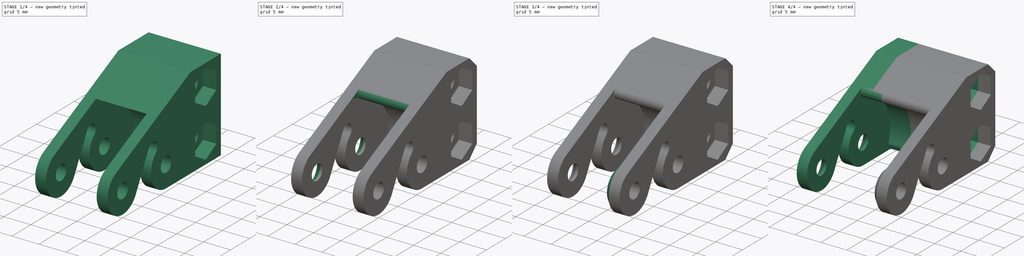
[diagram: build sequence overview — one tinted view per stage of 4, left to right]
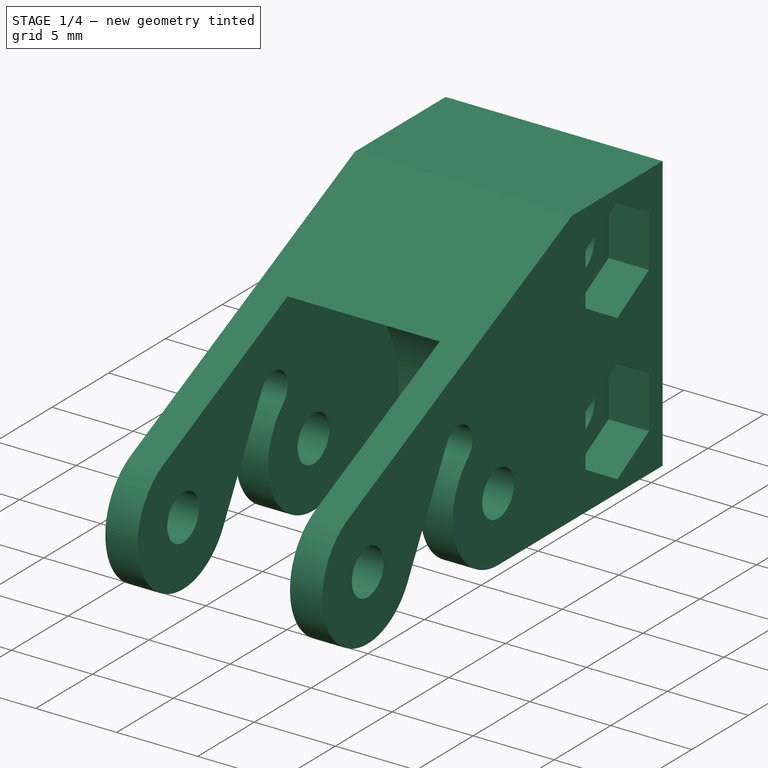
[diagram: stage 1 of 4 — iso view after this stage's code; geometry added in this stage tinted green]
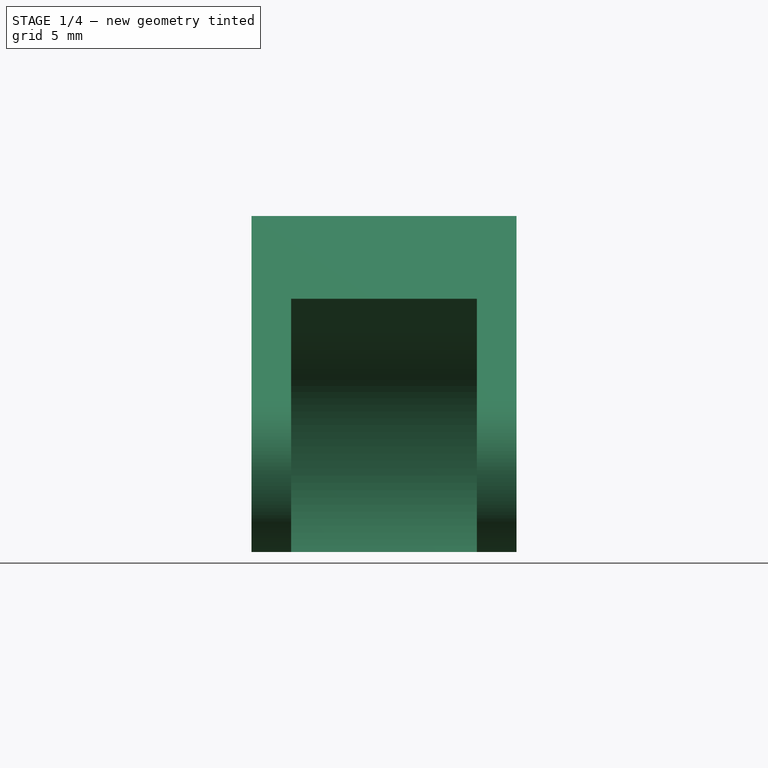
[diagram: stage 1 of 4 — front view after this stage's code; geometry added in this stage tinted green]
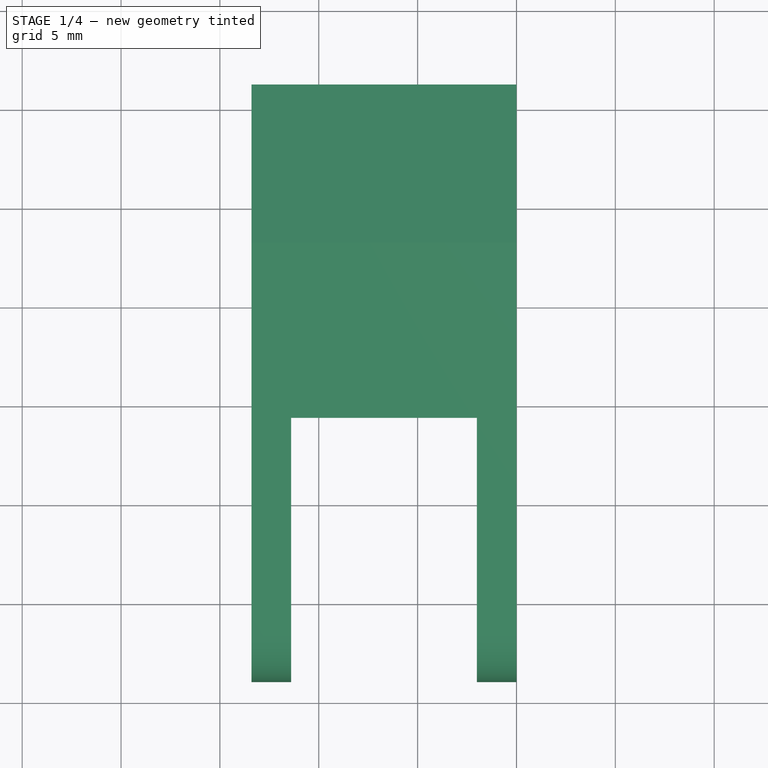
[diagram: stage 1 of 4 — top view after this stage's code; geometry added in this stage tinted green]
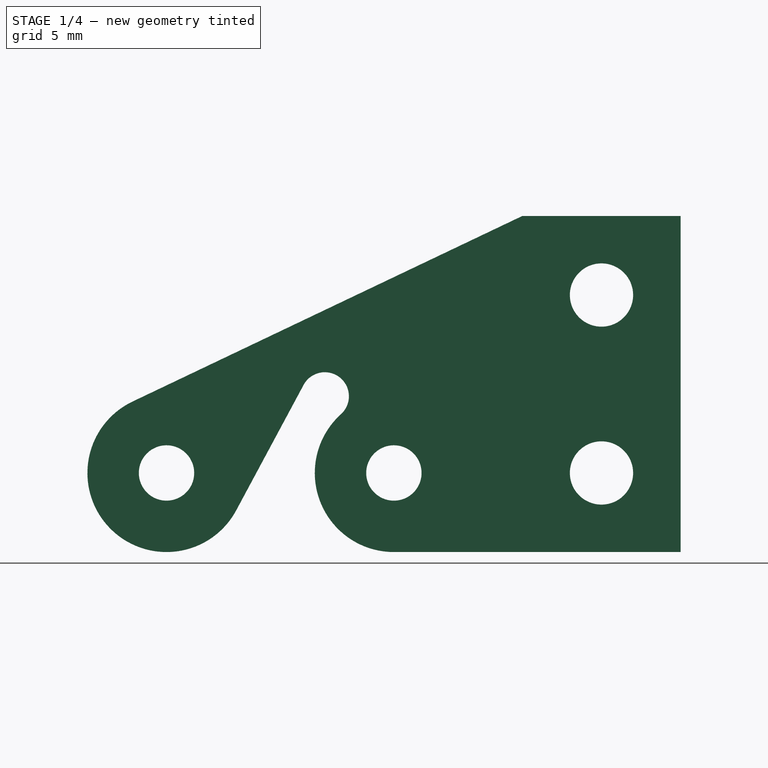
[diagram: stage 1 of 4 — right view after this stage's code; geometry added in this stage tinted green]
FCSTD DOCUMENT  (FreeCAD 0.20R29603 (Git))
Label: film-gear-frame
License: All rights reserved
LicenseURL: http://en.wikipedia.org/wiki/All_rights_reserved
objects: Sketcher::SketchObject×5, PartDesign::Pad×4, PartDesign::Pocket×4, PartDesign::Chamfer×4, PartDesign::Plane×2, PartDesign::Fillet×1, PartDesign::Body×1
note: 34 computed .brp shape members not serialized (recipe doc carries the construction recipe); baked Part::Feature solids carry a one-line shape summary decoded from their .brp

FEATURE [Sketcher::SketchObject] Sketch
  FullyConstrained = false
  MapMode = 5
  Placement = pos=(0,0,0) rot=(0.57735,0.57735,0.57735;2.0944rad)
  Support = -> [YZ_Plane]
  sketch-geometry (13):
    g0: ArcOfCircle CenterX=0 CenterY=0 CenterZ=0 NormalX=0 NormalY=0 NormalZ=1 AngleXU=0 Radius=4 StartAngle=2.01514 EndAngle=5.79013
    g1: LineSegment StartX=-1.71947 StartY=3.61157 StartZ=0 EndX=18 EndY=13 EndZ=0
    g2: LineSegment StartX=18 StartY=13 StartZ=0 EndX=26 EndY=13 EndZ=0
    g3: LineSegment StartX=26 StartY=13 StartZ=0 EndX=26 EndY=-4 EndZ=0
    g4: Circle CenterX=0 CenterY=0 CenterZ=0 NormalX=0 NormalY=0 NormalZ=1 AngleXU=0 Radius=1.4
    g5: Circle CenterX=11.5 CenterY=0 CenterZ=0 NormalX=0 NormalY=0 NormalZ=1 AngleXU=0 Radius=1.4
    g6: LineSegment StartX=3.52356 StartY=-1.89328 StartZ=0 EndX=6.93387 EndY=4.45363 EndZ=0
    g7: ArcOfCircle CenterX=8.0071 CenterY=3.87696 CenterZ=0 NormalX=0 NormalY=0 NormalZ=1 AngleXU=0 Radius=1.21835 StartAngle=5.44572 EndAngle=8.93172
    g8: ArcOfCircle CenterX=11.5 CenterY=0 CenterZ=0 NormalX=0 NormalY=0 NormalZ=1 AngleXU=0 Radius=4 StartAngle=2.30413 EndAngle=4.71239
    g9: LineSegment StartX=11.5 StartY=-4 StartZ=0 EndX=26 EndY=-4 EndZ=0
    g10: Circle CenterX=22 CenterY=0 CenterZ=0 NormalX=0 NormalY=0 NormalZ=1 AngleXU=0 Radius=1.6
    g11: Circle CenterX=22 CenterY=9 CenterZ=0 NormalX=0 NormalY=0 NormalZ=1 AngleXU=0 Radius=1.6
    g12: LineSegment StartX=22 StartY=0 StartZ=0 EndX=22 EndY=9 EndZ=0
  constraints (34):
    c: Coincident(g0,g-1)
    c: Tangent(g0,g1) = 1.5708
    c: Coincident(g1,g2)
    c: Coincident(g2,g3)
    c: Vertical(g3)
    c: Coincident(g4,g0)
    c: PointOnObject(g5,g-1)
    c: Diameter(g5) = 2.8
    c: Diameter(g4) = 2.8
    c: DistanceX(g0,g5) = 11.5
    c: Diameter(g0) = 8
    c: Tangent(g0,g6) = -1.5708
    c: Coincident(g7,g6)
    c: Coincident(g8,g5)
    c: Coincident(g8,g7)
    c: Coincident(g9,g8)
    c: Coincident(g9,g3)
    c: Tangent(g8,g9)
    c: Tangent(g6,g7)
    c: Tangent(g7,g8)
    c: Horizontal(g9)
    c: Diameter(g8) = 8
    c: PointOnObject(g10,g-1)
    c: Diameter(g11) = 3.2
    c: Diameter(g10) = 3.2
    c: Coincident(g12,g10)
    c: Coincident(g12,g11)
    c: Vertical(g12)
    c: DistanceY(g12,g12) = 9
    c: DistanceX(g0,g10) = 22
    c: DistanceX(g0,g3) = 26
    c: DistanceY(g3,g3) = 17
    c: Horizontal(g2)
    c: DistanceX(g2,g2) = 8
FEATURE [PartDesign::Pad] Pad
  Direction = (1,1,1)
  Length = 13.4
  Length2 = 100
  Placement = pos=(0,0,0) rot=(0.57735,0.57735,0.57735;2.0944rad)
  Profile = -> Sketch
  Reversed = true
  Type = 0
FEATURE [PartDesign::Plane] DatumPlane
  AttachmentOffset = pos=(0,0,-6.7) rot=(0,0,1;0rad)
  Length = 61.0995
  MapMode = 5
  Placement = pos=(-6.7,1.5e-15,-1.5e-15) rot=(0.57735,0.57735,0.57735;2.0944rad)
  ResizeMode = 0
  Support = -> [YZ_Plane]
  Width = 60.0995
FEATURE [Sketcher::SketchObject] Sketch001
  FullyConstrained = false
  MapMode = 5
  Placement = pos=(-6.7,1.5e-15,-1.5e-15) rot=(0.57735,0.57735,0.57735;2.0944rad)
  Support = -> [DatumPlane]
  sketch-geometry (4):
    g0: ArcOfCircle CenterX=11.5 CenterY=0 CenterZ=0 NormalX=0 NormalY=0 NormalZ=1 AngleXU=0 Radius=7.5 StartAngle=5.02937 EndAngle=7.50491
    g1: LineSegment StartX=13.8377 StartY=-7.12636 StartZ=0 EndX=-9.26512 EndY=-7.12636 EndZ=0
    g2: LineSegment StartX=-9.26512 StartY=-7.12636 StartZ=0 EndX=-9.26512 EndY=15.5392 EndZ=0
    g3: LineSegment StartX=-9.26512 StartY=15.5392 StartZ=0 EndX=14.0652 EndY=7.04768 EndZ=0
  constraints (11):
    c: PointOnObject(g0,g-1)
    c: Coincident(g0,g1)
    c: Coincident(g1,g2)
    c: Coincident(g2,g3)
    c: Coincident(g3,g0)
    c: Vertical(g2)
    c: Horizontal(g1)
    c: DistanceX(g-1,g0) = 11.5
    c: Diameter(g0) = 15
    c: Angle(g2,g3) = 1.22173
    c: Tangent(g3,g0)
FEATURE [PartDesign::Pocket] Pocket
  BaseFeature = -> Pad
  Direction = (1,1,1)
  Length = 9.4
  Length2 = 100
  Midplane = true
  Placement = pos=(0,0,0) rot=(0.57735,0.57735,0.57735;2.0944rad)
  Profile = -> Sketch001
  Type = 0
FEATURE [Sketcher::SketchObject] Sketch002
  FullyConstrained = true
  MapMode = 5
  Placement = pos=(0,0,0) rot=(0.57735,0.57735,0.57735;2.0944rad)
  Support = -> [YZ_Plane]
  sketch-geometry (14):
    g0: LineSegment StartX=22 StartY=12.2332 StartZ=0 EndX=19.2 EndY=10.6166 EndZ=0
    g1: LineSegment StartX=19.2 StartY=10.6166 StartZ=0 EndX=19.2 EndY=7.38342 EndZ=0
    g2: LineSegment StartX=19.2 StartY=7.38342 StartZ=0 EndX=22 EndY=5.76684 EndZ=0
    g3: LineSegment StartX=22 StartY=5.76684 StartZ=0 EndX=24.8 EndY=7.38342 EndZ=0
    g4: Circle CenterX=22 CenterY=9 CenterZ=0 NormalX=0 NormalY=0 NormalZ=1 AngleXU=0 Radius=3.23316
    g5: LineSegment StartX=22 StartY=3.23316 StartZ=0 EndX=19.2 EndY=1.61658 EndZ=0
    g6: LineSegment StartX=19.2 StartY=1.61658 StartZ=0 EndX=19.2 EndY=-1.61658 EndZ=0
    g7: LineSegment StartX=19.2 StartY=-1.61658 StartZ=0 EndX=22 EndY=-3.23316 EndZ=0
    g8: LineSegment StartX=22 StartY=-3.23316 StartZ=0 EndX=24.8 EndY=-1.61658 EndZ=0
    g9: Circle CenterX=22 CenterY=0 CenterZ=0 NormalX=0 NormalY=0 NormalZ=1 AngleXU=0 Radius=3.23316
    g10: LineSegment StartX=24.8 StartY=7.38342 StartZ=0 EndX=24.8 EndY=10.6166 EndZ=0
    g11: LineSegment StartX=24.8 StartY=10.6166 StartZ=0 EndX=22 EndY=12.2332 EndZ=0
    g12: LineSegment StartX=24.8 StartY=-1.61658 StartZ=0 EndX=24.8 EndY=1.61658 EndZ=0
    g13: LineSegment StartX=24.8 StartY=1.61658 StartZ=0 EndX=22 EndY=3.23316 EndZ=0
  constraints (42):
    c: Coincident(g0,g1)
    c: Coincident(g1,g2)
    c: Coincident(g2,g3)
    c: PointOnObject(g0,g4)
    c: PointOnObject(g0,g4)
    c: PointOnObject(g1,g4)
    c: PointOnObject(g2,g4)
    c: PointOnObject(g3,g4)
    c: DistanceX(g-1,g4) = 22
    c: DistanceY(g-1,g4) = 9
    c: Equal(g1,g2)
    c: Equal(g3,g2)
    c: Equal(g0,g1)
    c: Coincident(g5,g6)
    c: Coincident(g6,g7)
    c: Coincident(g7,g8)
    c: PointOnObject(g5,g9)
    c: PointOnObject(g5,g9)
    c: PointOnObject(g6,g9)
    c: PointOnObject(g7,g9)
    c: PointOnObject(g8,g9)
    c: PointOnObject(g9,g-1)
    c: Equal(g6,g5)
    c: Equal(g7,g6)
    c: Equal(g8,g7)
    c: DistanceX(g-1,g9) = 22
    c: Coincident(g3,g10)
    c: PointOnObject(g10,g4)
    c: Coincident(g10,g11)
    c: Coincident(g11,g0)
    c: Equal(g0,g11)
    c: Coincident(g8,g12)
    c: PointOnObject(g12,g9)
    c: Coincident(g12,g13)
    c: Coincident(g13,g5)
    c: Equal(g5,g13)
    c: Vertical(g1)
    c: Equal(g10,g11)
    c: DistanceX(g0,g10) = 5.6
    c: Vertical(g6)
    c: Equal(g13,g12)
    c: DistanceX(g6,g8) = 5.6
FEATURE [PartDesign::Pocket] Pocket001
  BaseFeature = -> Pocket
  Direction = (1,1,1)
  Length = 5
  Length2 = 100
  Midplane = true
  Placement = pos=(0,0,0) rot=(0.57735,0.57735,0.57735;2.0944rad)
  Profile = -> Sketch002
  Type = 0
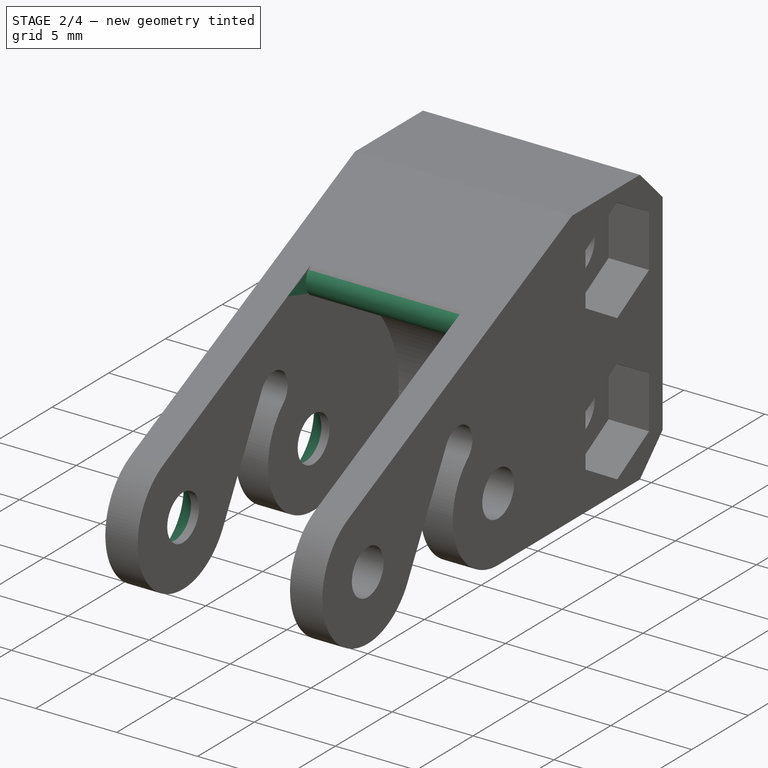
[diagram: stage 2 of 4 — iso view after this stage's code; geometry added in this stage tinted green]
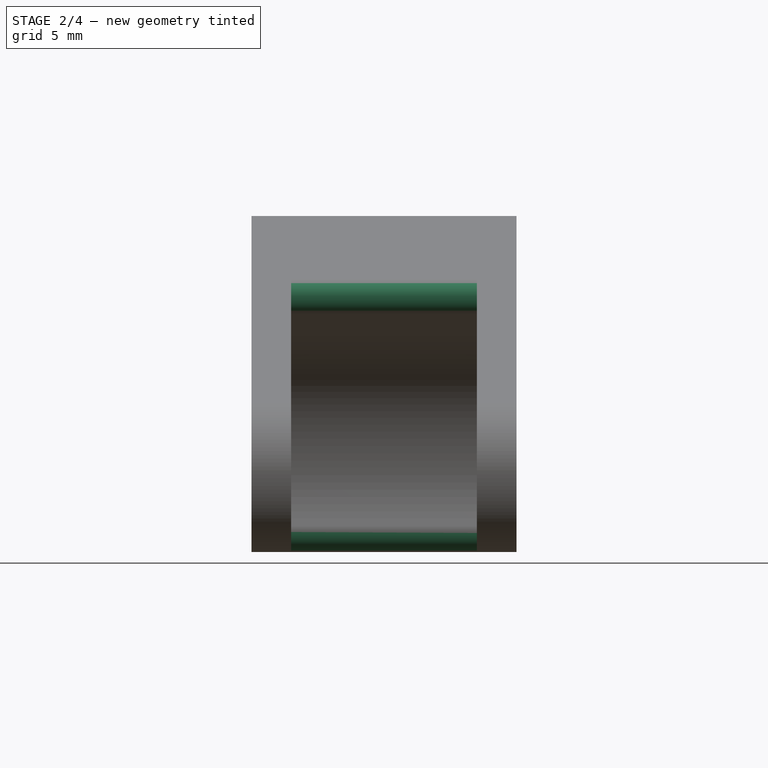
[diagram: stage 2 of 4 — front view after this stage's code; geometry added in this stage tinted green]
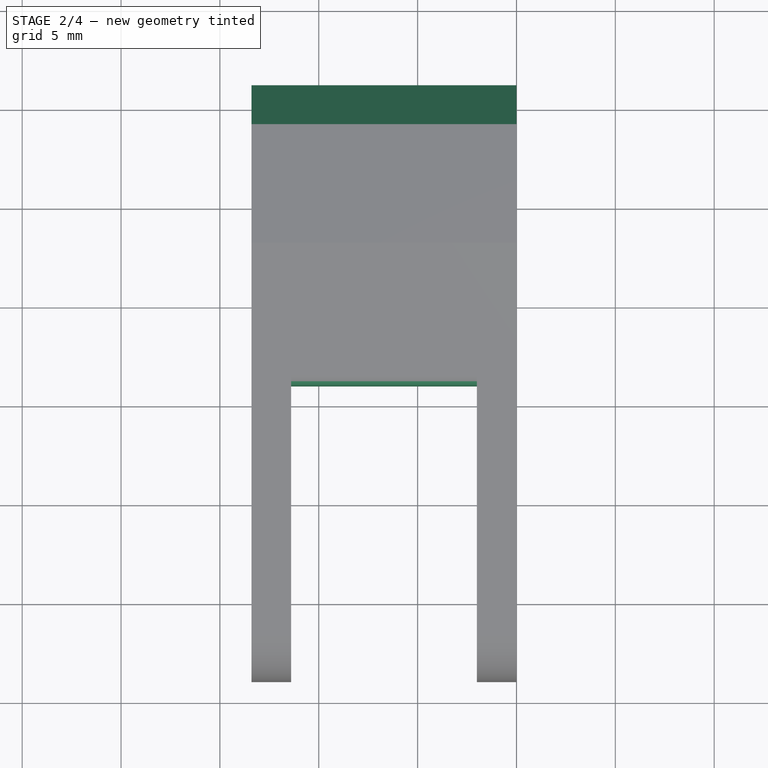
[diagram: stage 2 of 4 — top view after this stage's code; geometry added in this stage tinted green]
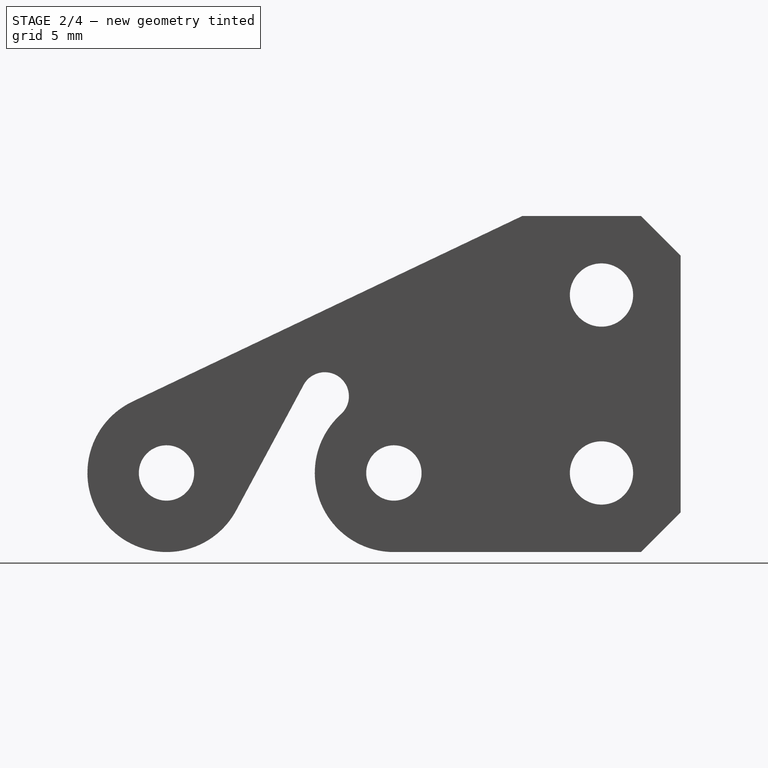
[diagram: stage 2 of 4 — right view after this stage's code; geometry added in this stage tinted green]
FEATURE [PartDesign::Chamfer] Chamfer
  Angle = 45
  Base = -> Pocket001 [Edge83,Edge84]
  BaseFeature = -> Pocket001
  ChamferType = 0
  FlipDirection = false
  Placement = pos=(0,0,0) rot=(0.57735,0.57735,0.57735;2.0944rad)
  Size = 1.5
  Size2 = 1
  SupportTransform = false
  UseAllEdges = false
FEATURE [PartDesign::Fillet] Fillet
  Base = -> Chamfer [Edge31,Edge21]
  BaseFeature = -> Chamfer
  Placement = pos=(0,0,0) rot=(0.57735,0.57735,0.57735;2.0944rad)
  Radius = 1
  SupportTransform = false
  UseAllEdges = false
FEATURE [PartDesign::Chamfer] Chamfer001
  Angle = 45
  Base = -> Fillet [Edge48,Edge8]
  BaseFeature = -> Fillet
  ChamferType = 0
  FlipDirection = false
  Placement = pos=(0,0,0) rot=(0.57735,0.57735,0.57735;2.0944rad)
  Size = 2
  Size2 = 1
  SupportTransform = false
  UseAllEdges = false
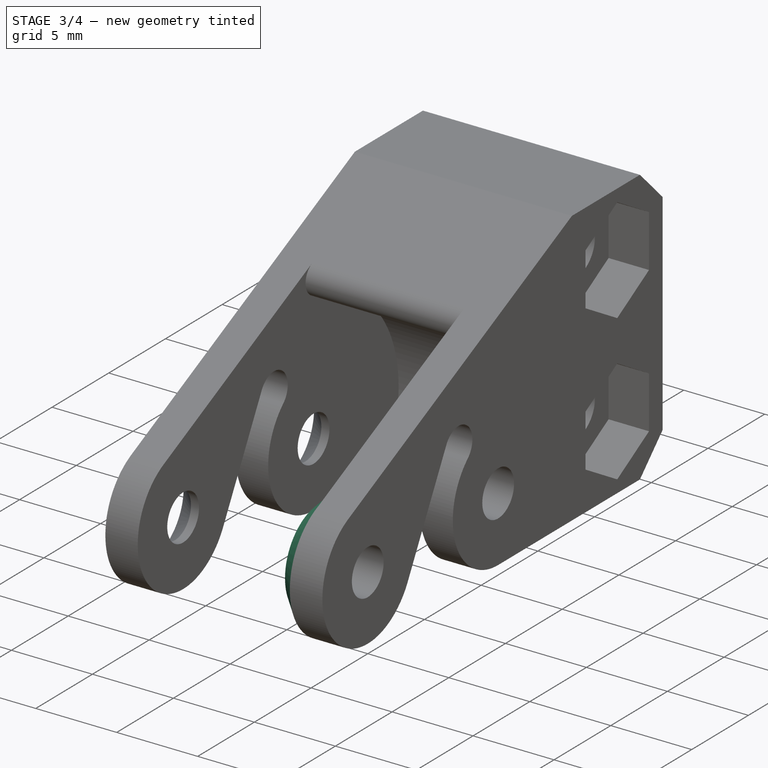
[diagram: stage 3 of 4 — iso view after this stage's code; geometry added in this stage tinted green]
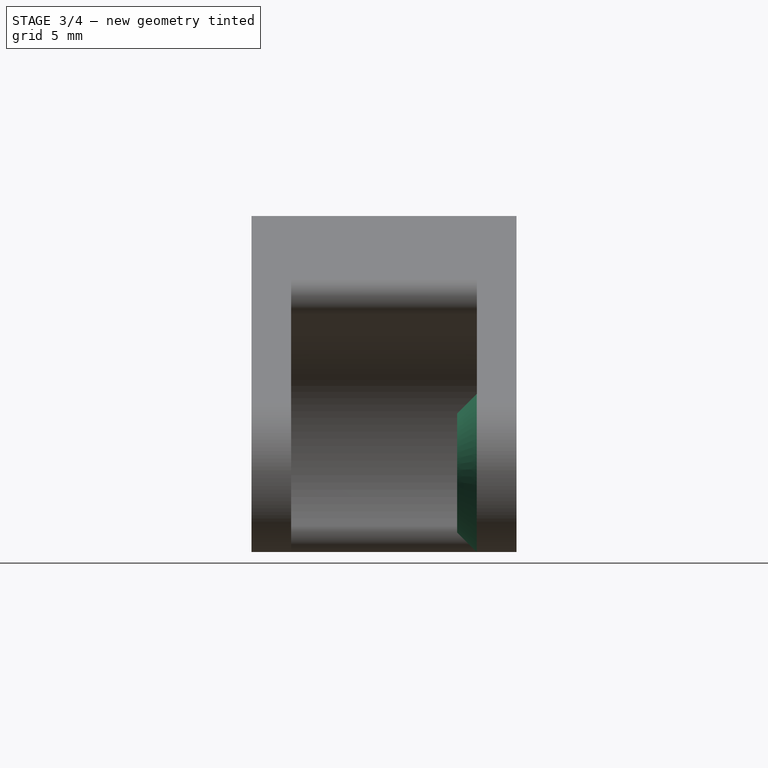
[diagram: stage 3 of 4 — front view after this stage's code; geometry added in this stage tinted green]
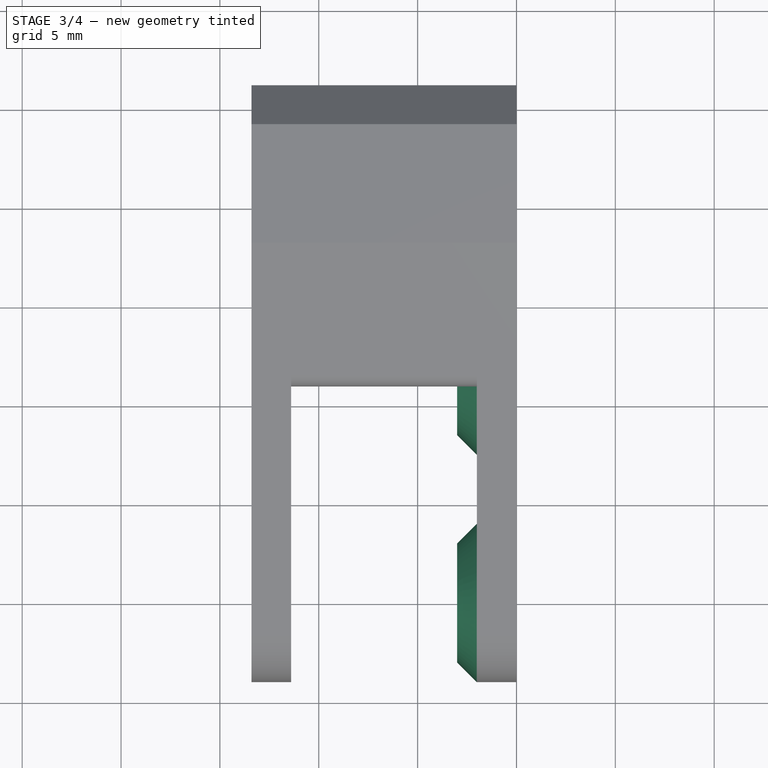
[diagram: stage 3 of 4 — top view after this stage's code; geometry added in this stage tinted green]
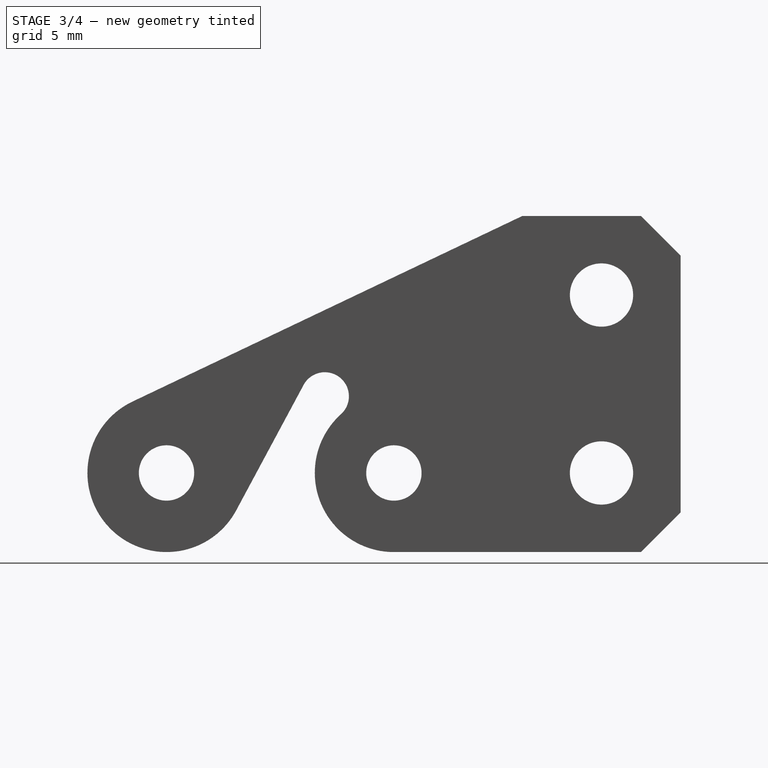
[diagram: stage 3 of 4 — right view after this stage's code; geometry added in this stage tinted green]
FEATURE [PartDesign::Plane] DatumPlane001
  Length = 61.0995
  MapMode = 5
  Placement = pos=(-2,0,-2e-16) rot=(0.57735,0.57735,-0.57735;4.18879rad)
  ResizeMode = 0
  Support = -> [Chamfer001]
  Width = 60.0995
FEATURE [Sketcher::SketchObject] Sketch003
  FullyConstrained = true
  MapMode = 5
  Placement = pos=(-2,0,-2e-16) rot=(0.57735,0.57735,-0.57735;4.18879rad)
  Support = -> [DatumPlane001]
  sketch-geometry (2):
    g0: Circle CenterX=11.5 CenterY=0 CenterZ=0 NormalX=0 NormalY=0 NormalZ=1 AngleXU=0 Radius=4
    g1: Circle CenterX=11.5 CenterY=0 CenterZ=0 NormalX=0 NormalY=0 NormalZ=1 AngleXU=0 Radius=1.4
  constraints (5):
    c: PointOnObject(g0,g-1)
    c: Diameter(g0) = 8
    c: Coincident(g1,g0)
    c: Diameter(g1) = 2.8
    c: DistanceX(g-1,g0) = 11.5
FEATURE [PartDesign::Pad] Pad001
  BaseFeature = -> Chamfer001
  Direction = (1,1,1)
  Length = 1
  Length2 = 100
  Placement = pos=(0,0,0) rot=(0.57735,0.57735,0.57735;2.0944rad)
  Profile = -> Sketch003
  Type = 0
FEATURE [Sketcher::SketchObject] Sketch004
  FullyConstrained = true
  MapMode = 5
  Placement = pos=(-2,0,-2e-16) rot=(0.57735,0.57735,-0.57735;4.18879rad)
  Support = -> [DatumPlane001]
  sketch-geometry (2):
    g0: Circle CenterX=0 CenterY=0 CenterZ=0 NormalX=0 NormalY=0 NormalZ=1 AngleXU=0 Radius=1.4
    g1: Circle CenterX=0 CenterY=0 CenterZ=0 NormalX=0 NormalY=0 NormalZ=1 AngleXU=0 Radius=4
  constraints (4):
    c: Coincident(g0,g-1)
    c: Coincident(g1,g0)
    c: Diameter(g1) = 8
    c: Diameter(g0) = 2.8
FEATURE [PartDesign::Pad] Pad002
  BaseFeature = -> Pad001
  Direction = (1,1,1)
  Length = 1
  Length2 = 100
  Placement = pos=(0,0,0) rot=(0.57735,0.57735,0.57735;2.0944rad)
  Profile = -> Sketch004
  Type = 0
FEATURE [PartDesign::Chamfer] Chamfer002
  Angle = 45
  Base = -> Pad002 [Edge130,Edge128]
  BaseFeature = -> Pad002
  ChamferType = 0
  FlipDirection = false
  Placement = pos=(0,0,0) rot=(0.57735,0.57735,0.57735;2.0944rad)
  Size = 0.99
  Size2 = 1
  SupportTransform = false
  UseAllEdges = false
FEATURE [PartDesign::Chamfer] Chamfer003
  Angle = 45
  Base = -> Chamfer002 [Edge137,Edge23]
  BaseFeature = -> Chamfer002
  ChamferType = 0
  FlipDirection = false
  Placement = pos=(0,0,0) rot=(0.57735,0.57735,0.57735;2.0944rad)
  Size = 0.25
  Size2 = 1
  SupportTransform = false
  UseAllEdges = false
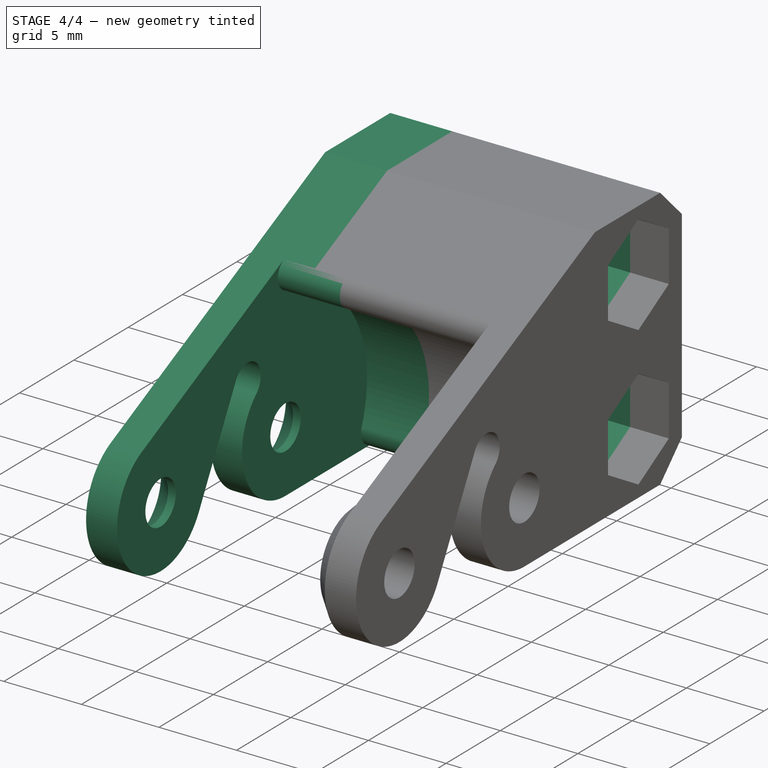
[diagram: stage 4 of 4 — iso view after this stage's code; geometry added in this stage tinted green]
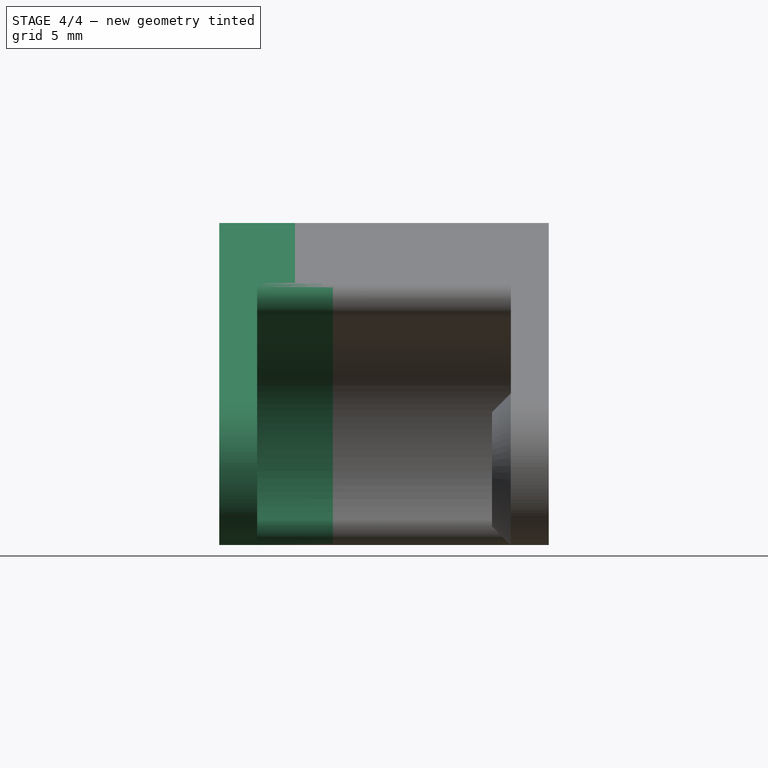
[diagram: stage 4 of 4 — front view after this stage's code; geometry added in this stage tinted green]
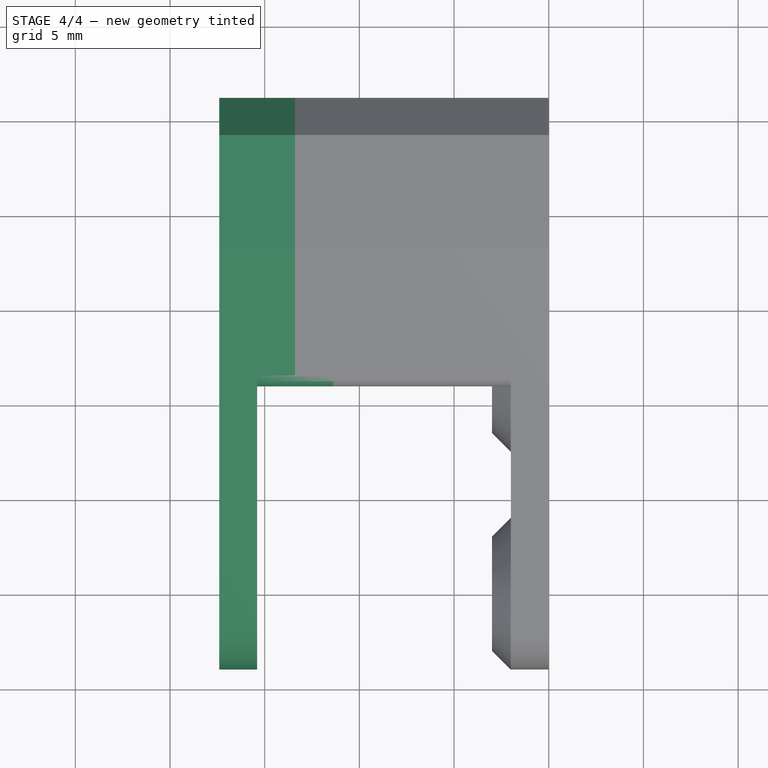
[diagram: stage 4 of 4 — top view after this stage's code; geometry added in this stage tinted green]
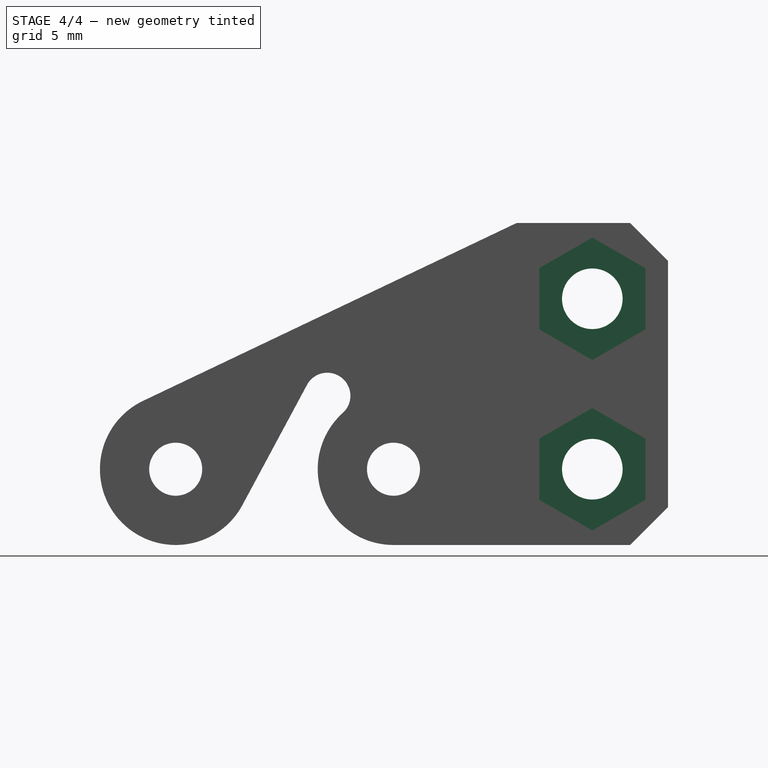
[diagram: stage 4 of 4 — right view after this stage's code; geometry added in this stage tinted green]
FEATURE [PartDesign::Pad] Pad003
  BaseFeature = -> Chamfer003
  Direction = (-1,2e-16,-2e-16)
  Length = 4
  Length2 = 10
  Placement = pos=(0,0,0) rot=(0.57735,0.57735,0.57735;2.0944rad)
  Profile = -> Chamfer003 [Face38,Face49,Face52]
  Type = 0
FEATURE [PartDesign::Pocket] Pocket002
  BaseFeature = -> Pad003
  Direction = (-1,0,-3e-16)
  Length = 4
  Length2 = 5
  Placement = pos=(0,0,0) rot=(0.57735,0.57735,0.57735;2.0944rad)
  Profile = -> Pad003 [Face37]
  Type = 0
FEATURE [PartDesign::Pocket] Pocket003
  BaseFeature = -> Pocket002
  Direction = (-1,2e-16,-7e-16)
  Length = 4
  Length2 = 5
  Placement = pos=(0,0,0) rot=(0.57735,0.57735,0.57735;2.0944rad)
  Profile = -> Pocket002 [Face49,Face48]
  Type = 0
FEATURE [PartDesign::Body] Body
  Group = -> [Sketch,Pad,DatumPlane,Sketch001,Pocket,Sketch002,Pocket001,Chamfer,Fillet,Chamfer001,DatumPlane001,Sketch003,Pad001,Sketch004,Pad002,Chamfer002,Chamfer003,Pad003,Pocket002,Pocket003]
  Origin = -> Origin
  Tip = -> Pocket003
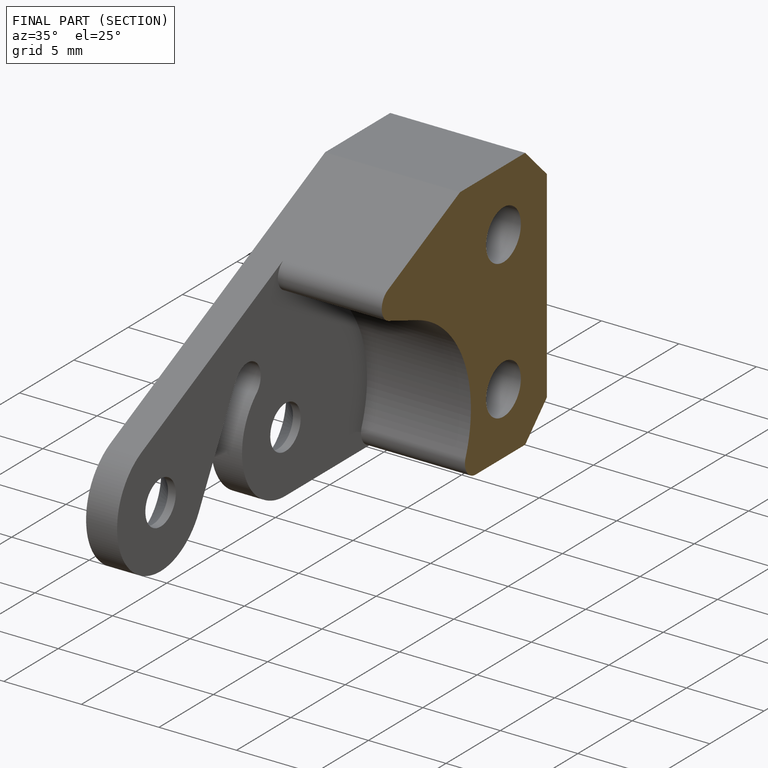
[diagram: finished part — half-section view (interior)]
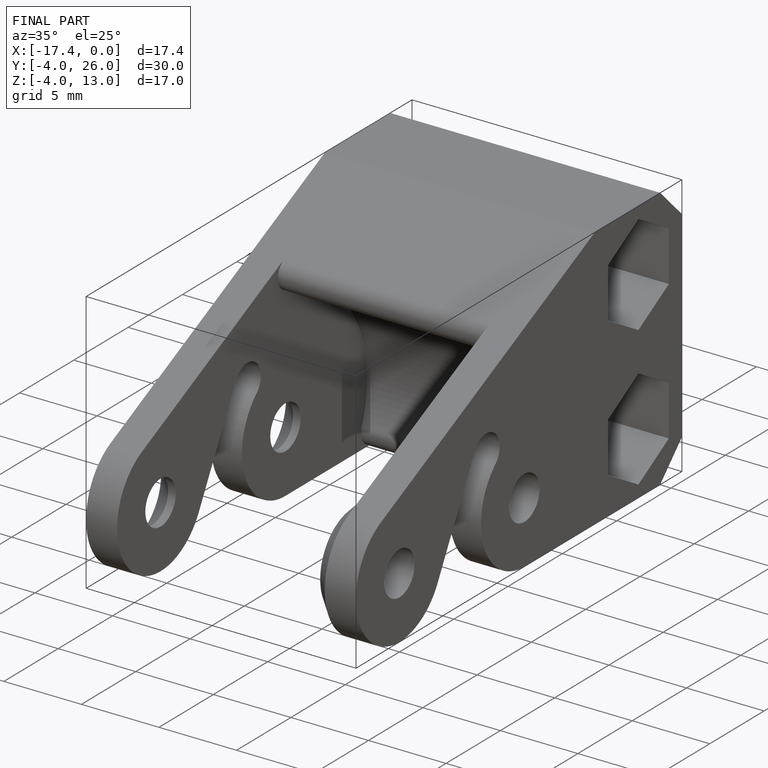
[diagram: finished part — iso view with bounding-box wireframe]
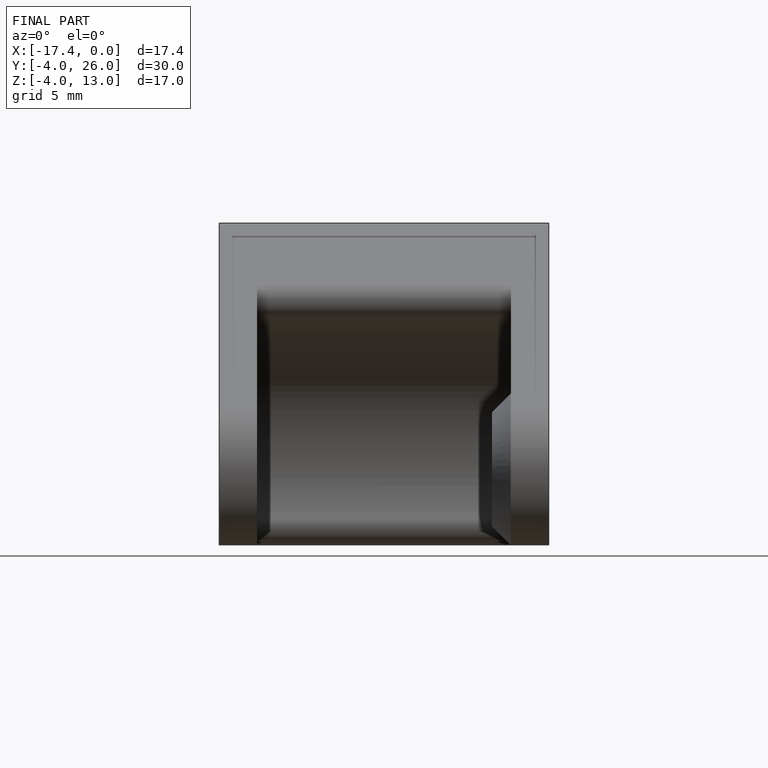
[diagram: finished part — front view with bounding-box wireframe]
